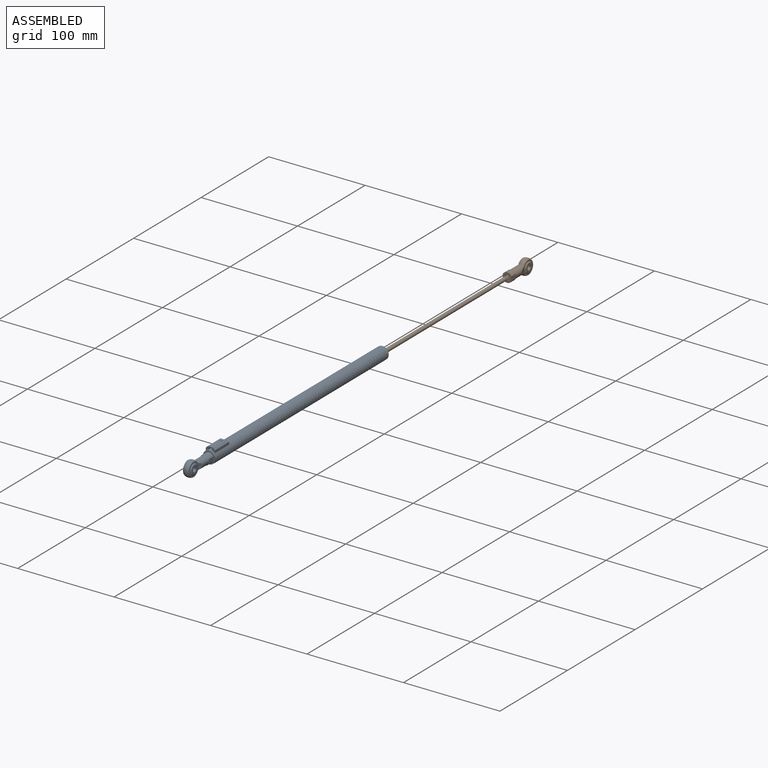
[diagram: assembled view]
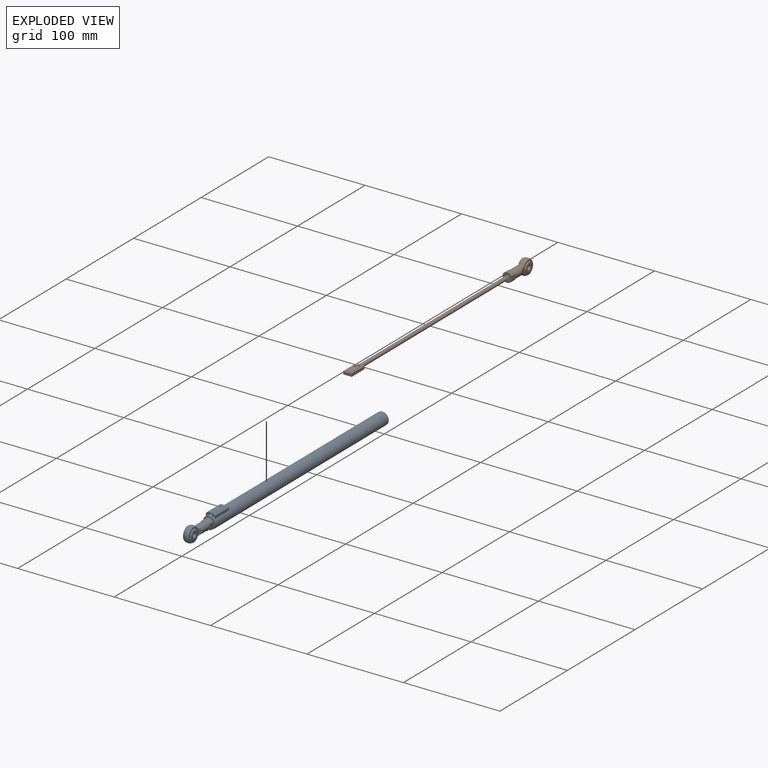
[diagram: exploded view]
GUIDED TOUR — MATED ASSEMBLY WITH SUBASSEMBLIES (Onshape document 5767b242e4b05752877bfc2a, AutoMate assembly 5767b242e4b05752877bfc2a_a9e642da309493be5c28545a_362c130009f189b425b69951_default)

This assembly has 11 component occurrences arranged in 2 top-level units: 0 individual components plus 2 subassemblies (S0, S1). The tour has two levels: first the top level, where each subassembly is treated as one rigid unit; then each subassembly is toured internally in its own section (nesting deeper than one subassembly level is flattened into its subassembly's section).

Components are labeled P0..P10 across the whole record; subassembly units are labeled S0..S1. A mate is a constraint between two units; its type names the relative motion it leaves free:
  FASTENED — locks the two components together rigidly (no relative motion),
  SLIDER — leaves translation along the listed axis free.
Axis/direction vectors are unit vectors and 'through' points are millimeter coordinates, both in the assembly's world frame.

TOP-LEVEL MATES (between units; each subassembly's internal mates are listed in its own section)
  1. SLIDER "Slider 1": S1 <-> S0, axis (0.000, -1.000, 0.000) through (0.10, 145.32, -0.22) mm

TOP-LEVEL ASSEMBLY ORDER
  1. S1 — the base component [order verified]
  2. S0 [order verified]
Order-tag legend:
  [order verified] — this step's position reverses a verified removal order: the component was checked to insert without passing through the ones already placed.

Of the 11 component occurrences, 7 carry the full construction recipe — the FeatureScript program that regenerates the part's solid from scratch; the rest are supplied as boundary geometry only. Each toured unit is shown spotlighted twice — assembled, then exploded with a leader line back to its socket (green = recipe-attached component, orange = geometry-only, blue = subassembly unit; the rest desaturated gray).
NOTE — document 2 of 2 of this assembly tour. The two overview renders and the header above are repeated from document 1; the component sections below continue where the previous document stopped.
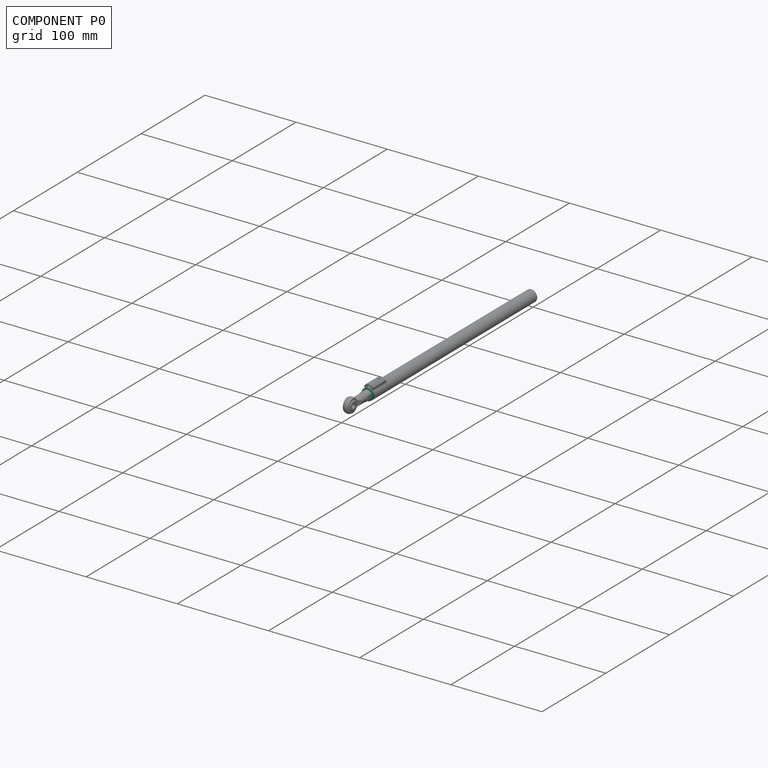
[diagram: component P0 — assembled]
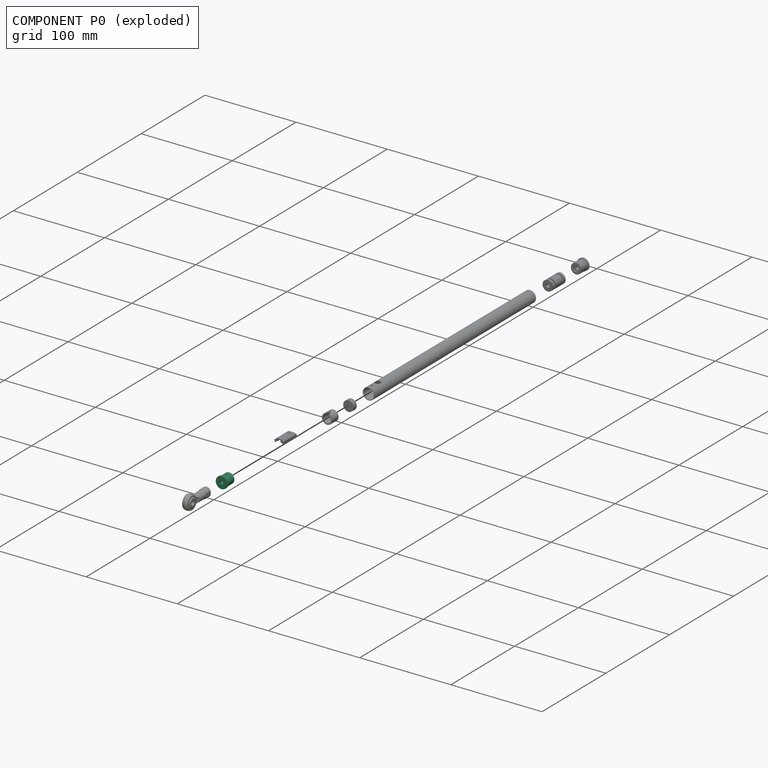
[diagram: component P0 — exploded]
COMPONENT P0 — recipe-attached (CADFS 00160749, mesh-verified: the recipe's output STEP matches this component's geometry to below the mesh-comparison resolution (tessellation chordal tolerance ~0.0326 mm)).
Held by: FASTENED mate "Fastened 3" to P3; FASTENED mate "Fastened 8" to P5; FASTENED mate "Fastened 6" to P4; FASTENED mate "Fastened 6" to P4; FASTENED mate "Fastened 3" to P3; FASTENED mate "Fastened 8" to P5.
Construction recipe (FeatureScript — the CAD program that rebuilds this solid; sketch coordinates are in the units given by the * unit suffixes, e.g. mm):

FeatureScript 1511;
import(path : "onshape/std/geometry.fs", version : "1511.0");
import(path : "onshape/std/common.fs", version : "1511.0");
const mm = millimeter;
const VERTEX = EntityType.VERTEX;
const EDGE = EntityType.EDGE;
const FACE = EntityType.FACE;
const BODY = EntityType.BODY;
function v(x, y){return vector(x, y);}
function OD(order){return orderDisambiguation(order);}
function OSD(set){return originalSetDisambiguation(set);}
function TD(topology){return topologyDisambiguation(topology);}
function TDD(query){return trueDependencyDisambiguation(query);}
function sQuery(a, b, c) {return sketchEntityQuery(a, b, c);}

annotation { "Feature Type Name" : "Feature", "Feature Type Description" : "" }
export const myFeature = defineFeature(function(context is Context, id is Id, definition is map)
    precondition{}
    {
        {
            assignVariable(context, id + "F0", {"name" : "InDiam_Bore", "anyValue" : 2});
        }
        {
            var Q0;
            Q0=qCreatedBy(makeId("Right.planeOp"),FACE);
            var sketch = newSketch(context, id + "F1", { "sketchPlane" : qUnion([Q0])});
            skLineSegment(sketch, "E0", {"start": v(11.47, 0) * mm, "end": v(0, 0) * mm, "construction": true});
            skLineSegment(sketch, "E1", {"start": v(8.9, 2.1) * mm, "end": v(0, 2.1) * mm});
            skLineSegment(sketch, "E2", {"start": v(8.9, 2.1) * mm, "end": v(8.9, 4.05) * mm});
            skLineSegment(sketch, "E3", {"start": v(12, 4.05) * mm, "end": v(8.9, 4.05) * mm});
            skLineSegment(sketch, "E4", {"start": v(12, 4.05) * mm, "end": v(12, 5.7) * mm});
            skLineSegment(sketch, "E5", {"start": v(2, 5.7) * mm, "end": v(12, 5.7) * mm});
            skLineSegment(sketch, "E6", {"start": v(2, 5.7) * mm, "end": v(2, 6.4) * mm});
            skLineSegment(sketch, "E7", {"start": v(0, 6.4) * mm, "end": v(2, 6.4) * mm});
            skLineSegment(sketch, "E8", {"start": v(0, 6.4) * mm, "end": v(0, 2.1) * mm});
            skSolve(sketch);
        }
        {
            var Q0;
            Q0=makeQuery(id+"F1.imprint","IMPRINT",FACE,{"disambiguationData":[TD([[makeQuery(id+"F1.imprint","IMPRINT",EDGE,{"derivedFrom":sQuery(id+"F1.wireOp",EDGE,"E1")}),-1.0]])]});
            var Q1;
            Q1=sQuery(id+"F1.wireOp",EDGE,"E0");
            revolve(context, id + "F2", {"entities" : qUnion([Q0]), "axis" : qUnion([Q1]), "revolveType" : RevolveType.FULL});
        }
        {
            var Q0;
            Q0=qCreatedBy(makeId("Top.planeOp"),FACE);
            var sketch = newSketch(context, id + "F3", { "sketchPlane" : qUnion([Q0])});
            skCircle(sketch, "E9", {"center": v(0, 7) * mm, "radius": 1 * mm});
            skLineSegment(sketch, "E10.0", {"start": v(-5.7, 12) * mm, "end": v(5.7, 12) * mm});
            skSolve(sketch);
        }
        {
            var Q0;
            Q0=sQuery(id+"F3.wireOp",VERTEX,"E9.center");
            var Q1;
            Q1=makeQuery(id+"F2.opRevolve","SWEPT_BODY",BODY,{"disambiguationData":[OSD([sQuery(id+"F1.wireOp",EDGE,"E1"),sQuery(id+"F1.wireOp",EDGE,"E2"),sQuery(id+"F1.wireOp",EDGE,"E3"),sQuery(id+"F1.wireOp",EDGE,"E4"),sQuery(id+"F1.wireOp",EDGE,"E5"),sQuery(id+"F1.wireOp",EDGE,"E6"),sQuery(id+"F1.wireOp",EDGE,"E7"),sQuery(id+"F1.wireOp",EDGE,"E8")])]});
            hole(context, id + "F4", {"style" : HoleStyle.SIMPLE, "endStyle" : HoleEndStyle.THROUGH, "holeDiameter" : (getVariable(context, 'InDiam_Bore')) * mm, "startFromSketch" : true, "locations" : qUnion([Q0]), "scope" : qUnion([Q1]), "isTappedThrough" : true});
        }
    });
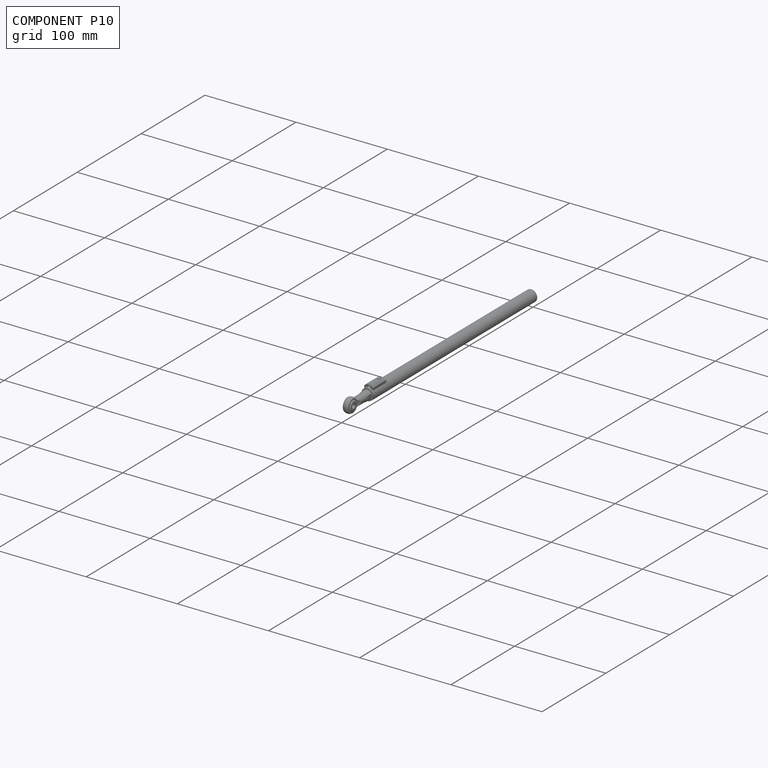
[diagram: component P10 — assembled]
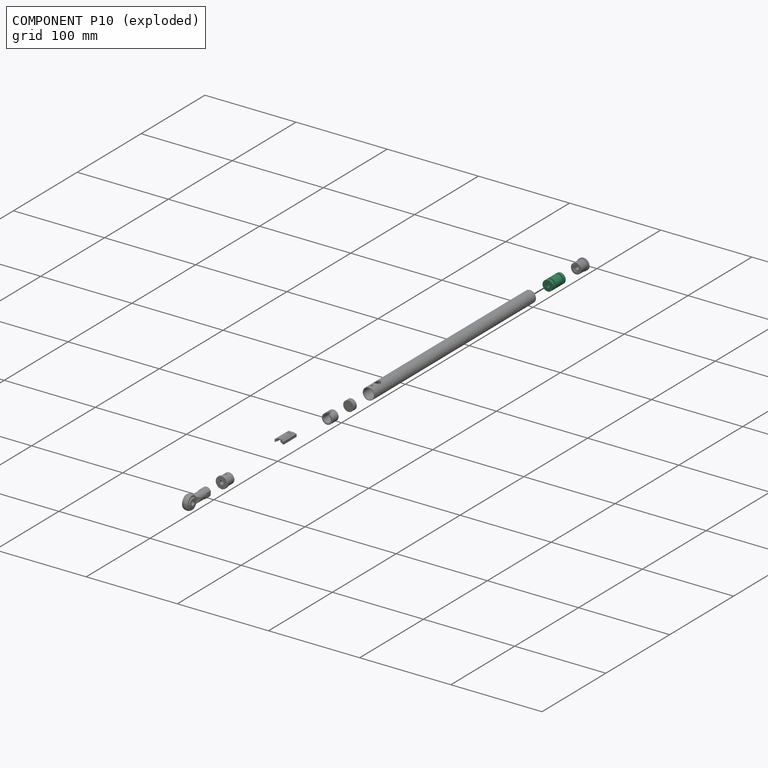
[diagram: component P10 — exploded]
COMPONENT P10 — recipe-attached (CADFS 00157078, mesh-verified: the recipe's output STEP matches this component's geometry to below the mesh-comparison resolution (tessellation chordal tolerance ~0.0385 mm)).
Held by: FASTENED mate "Fastened 4" to P5; FASTENED mate "Fastened 4" to P5.
Construction recipe (FeatureScript — the CAD program that rebuilds this solid; sketch coordinates are in the units given by the * unit suffixes, e.g. mm):

FeatureScript 1511;
import(path : "onshape/std/geometry.fs", version : "1511.0");
import(path : "onshape/std/common.fs", version : "1511.0");
const mm = millimeter;
const VERTEX = EntityType.VERTEX;
const EDGE = EntityType.EDGE;
const FACE = EntityType.FACE;
const BODY = EntityType.BODY;
function v(x, y){return vector(x, y);}
function OD(order){return orderDisambiguation(order);}
function OSD(set){return originalSetDisambiguation(set);}
function TD(topology){return topologyDisambiguation(topology);}
function TDD(query){return trueDependencyDisambiguation(query);}
function sQuery(a, b, c) {return sketchEntityQuery(a, b, c);}

annotation { "Feature Type Name" : "Feature", "Feature Type Description" : "" }
export const myFeature = defineFeature(function(context is Context, id is Id, definition is map)
    precondition{}
    {
        {
            var Q0;
            Q0=qCreatedBy(makeId("Right.planeOp"),FACE);
            var sketch = newSketch(context, id + "F0", { "sketchPlane" : qUnion([Q0])});
            skLineSegment(sketch, "E0", {"start": v(11.47, 0) * mm, "end": v(0, 0) * mm, "construction": true});
            skLineSegment(sketch, "E1", {"start": v(18.6, 2.05) * mm, "end": v(0, 2.05) * mm});
            skLineSegment(sketch, "E2", {"start": v(18.6, 2.05) * mm, "end": v(18.6, 3.45) * mm});
            skLineSegment(sketch, "E3", {"start": v(20, 3.45) * mm, "end": v(18.6, 3.45) * mm});
            skLineSegment(sketch, "E4", {"start": v(20, 3.45) * mm, "end": v(20, 5.7) * mm});
            skLineSegment(sketch, "E5", {"start": v(17, 5.7) * mm, "end": v(20, 5.7) * mm});
            skLineSegment(sketch, "E6", {"start": v(17, 5.7) * mm, "end": v(17, 4.2) * mm});
            skLineSegment(sketch, "E7", {"start": v(15.5, 4.2) * mm, "end": v(17, 4.2) * mm});
            skLineSegment(sketch, "E8", {"start": v(3, 4.2) * mm, "end": v(3, 5.7) * mm});
            skLineSegment(sketch, "E9", {"start": v(0, 5.7) * mm, "end": v(3, 5.7) * mm});
            skLineSegment(sketch, "E10", {"start": v(0, 5.7) * mm, "end": v(0, 2.05) * mm});
            skLineSegment(sketch, "E11", {"start": v(4.5, 4.2) * mm, "end": v(4.5, 5.7) * mm});
            skLineSegment(sketch, "E12", {"start": v(4.5, 5.7) * mm, "end": v(15.5, 5.7) * mm});
            skLineSegment(sketch, "E13", {"start": v(15.5, 5.7) * mm, "end": v(15.5, 4.2) * mm});
            skLineSegment(sketch, "E14.trimOffspring", {"start": v(4.5, 4.2) * mm, "end": v(3, 4.2) * mm});
            skSolve(sketch);
        }
        {
            var Q0;
            Q0=makeQuery(id+"F0.imprint","IMPRINT",FACE,{"disambiguationData":[TD([[makeQuery(id+"F0.imprint","IMPRINT",EDGE,{"derivedFrom":sQuery(id+"F0.wireOp",EDGE,"E1")}),-1.0]])]});
            var Q1;
            Q1=sQuery(id+"F0.wireOp",EDGE,"E0");
            revolve(context, id + "F1", {"entities" : qUnion([Q0]), "axis" : qUnion([Q1]), "revolveType" : RevolveType.FULL});
        }
    });
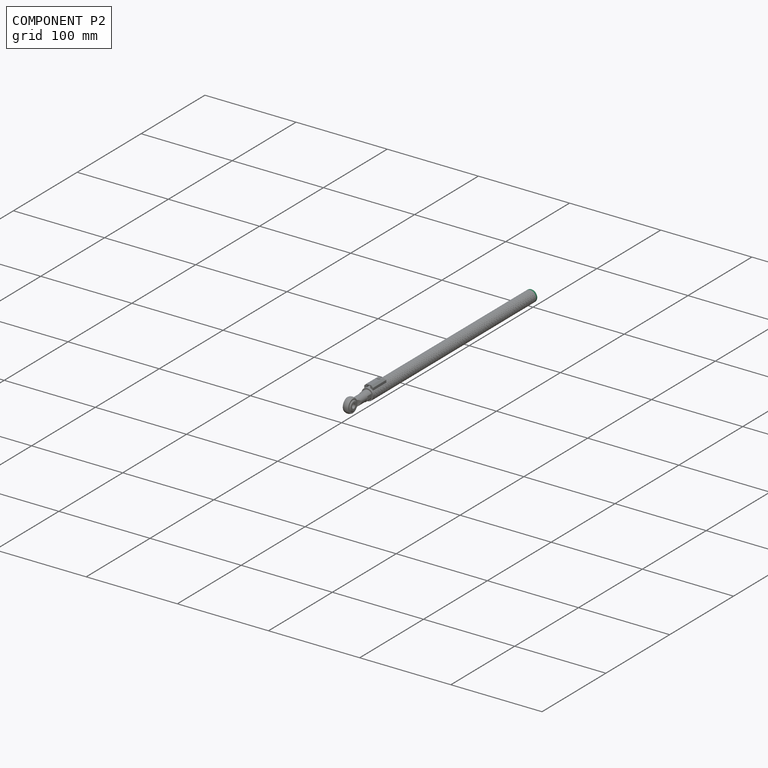
[diagram: component P2 — assembled]
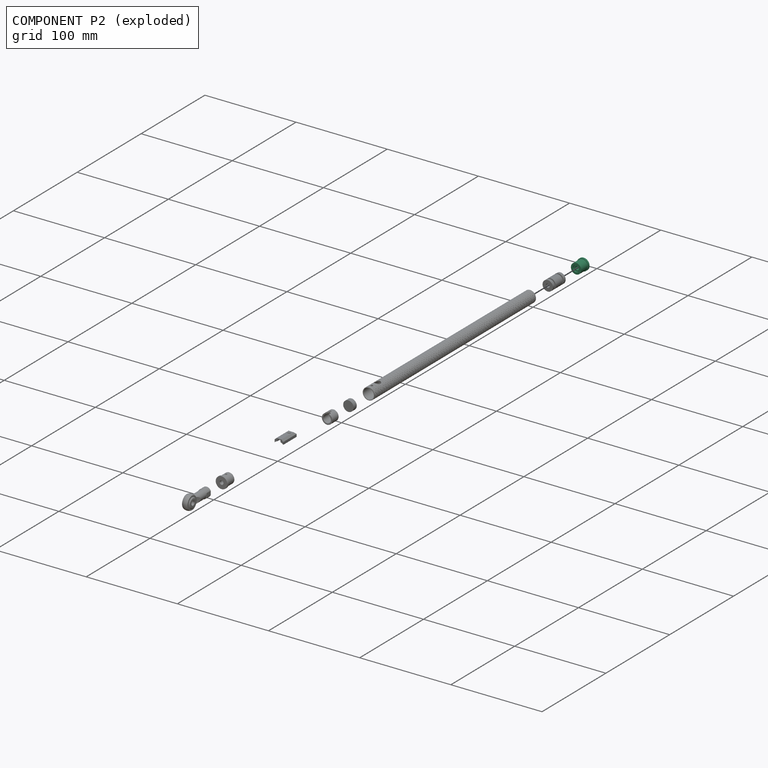
[diagram: component P2 — exploded]
COMPONENT P2 — recipe-attached (CADFS 00160707, mesh-verified: the recipe's output STEP matches this component's geometry to below the mesh-comparison resolution (tessellation chordal tolerance ~0.0326 mm)).
Held by: FASTENED mate "Fastened 5" to P5; FASTENED mate "Fastened 5" to P5.
Construction recipe (FeatureScript — the CAD program that rebuilds this solid; sketch coordinates are in the units given by the * unit suffixes, e.g. mm):

FeatureScript 1540;
import(path : "onshape/std/geometry.fs", version : "1540.0");
import(path : "onshape/std/common.fs", version : "1540.0");
const mm = millimeter;
const VERTEX = EntityType.VERTEX;
const EDGE = EntityType.EDGE;
const FACE = EntityType.FACE;
const BODY = EntityType.BODY;
function v(x, y){return vector(x, y);}
function OD(order){return orderDisambiguation(order);}
function OSD(set){return originalSetDisambiguation(set);}
function TD(topology){return topologyDisambiguation(topology);}
function TDD(query){return trueDependencyDisambiguation(query);}
function sQuery(a, b, c) {return sketchEntityQuery(a, b, c);}

annotation { "Feature Type Name" : "Feature", "Feature Type Description" : "" }
export const myFeature = defineFeature(function(context is Context, id is Id, definition is map)
    precondition{}
    {
        {
            var Q0;
            Q0=qCreatedBy(makeId("Right.planeOp"),FACE);
            var sketch = newSketch(context, id + "F0", { "sketchPlane" : qUnion([Q0])});
            skLineSegment(sketch, "E0", {"start": v(11.47, 0) * mm, "end": v(0, 0) * mm, "construction": true});
            skLineSegment(sketch, "E1", {"start": v(10.6, 2.1) * mm, "end": v(0, 2.1) * mm});
            skLineSegment(sketch, "E2", {"start": v(10.6, 2.1) * mm, "end": v(10.6, 3.45) * mm});
            skLineSegment(sketch, "E3", {"start": v(12, 3.45) * mm, "end": v(10.6, 3.45) * mm});
            skLineSegment(sketch, "E4", {"start": v(12, 3.45) * mm, "end": v(12, 5.7) * mm});
            skLineSegment(sketch, "E5", {"start": v(2, 5.7) * mm, "end": v(12, 5.7) * mm});
            skLineSegment(sketch, "E6", {"start": v(2, 5.7) * mm, "end": v(2, 6.4) * mm});
            skLineSegment(sketch, "E7", {"start": v(0, 6.4) * mm, "end": v(2, 6.4) * mm});
            skLineSegment(sketch, "E8", {"start": v(0, 6.4) * mm, "end": v(0, 2.1) * mm});
            skSolve(sketch);
        }
        {
            var Q0;
            Q0=makeQuery(id+"F0.imprint","IMPRINT",FACE,{"disambiguationData":[TD([[makeQuery(id+"F0.imprint","IMPRINT",EDGE,{"derivedFrom":sQuery(id+"F0.wireOp",EDGE,"E1")}),-1.0]])]});
            var Q1;
            Q1=sQuery(id+"F0.wireOp",EDGE,"E0");
            revolve(context, id + "F1", {"entities" : qUnion([Q0]), "axis" : qUnion([Q1]), "revolveType" : RevolveType.FULL});
        }
    });
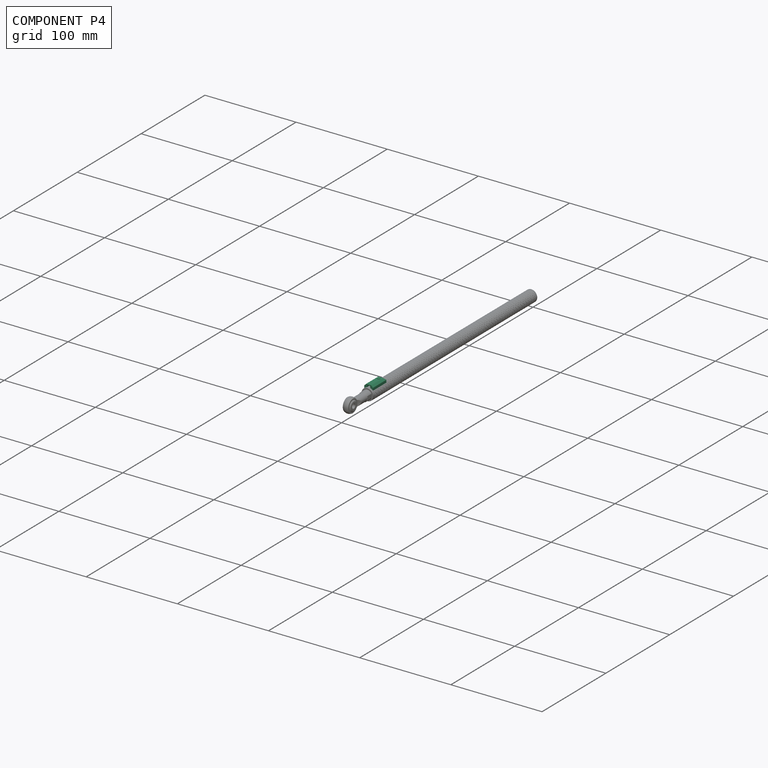
[diagram: component P4 — assembled]
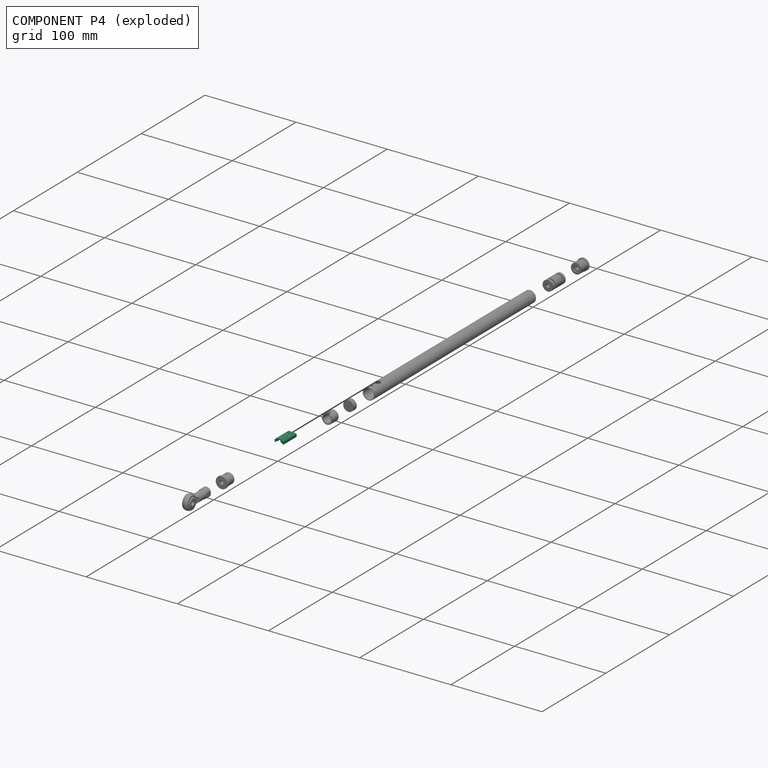
[diagram: component P4 — exploded]
COMPONENT P4 — recipe-attached (CADFS 00166230, mesh-verified: the recipe's output STEP matches this component's geometry to below the mesh-comparison resolution (tessellation chordal tolerance ~0.0353 mm)).
Held by: FASTENED mate "Fastened 6" to P0; FASTENED mate "Fastened 6" to P0.
Construction recipe (FeatureScript — the CAD program that rebuilds this solid; sketch coordinates are in the units given by the * unit suffixes, e.g. mm):

FeatureScript 1540;
import(path : "onshape/std/geometry.fs", version : "1540.0");
import(path : "onshape/std/common.fs", version : "1540.0");
const mm = millimeter;
const VERTEX = EntityType.VERTEX;
const EDGE = EntityType.EDGE;
const FACE = EntityType.FACE;
const BODY = EntityType.BODY;
function v(x, y){return vector(x, y);}
function OD(order){return orderDisambiguation(order);}
function OSD(set){return originalSetDisambiguation(set);}
function TD(topology){return topologyDisambiguation(topology);}
function TDD(query){return trueDependencyDisambiguation(query);}
function sQuery(a, b, c) {return sketchEntityQuery(a, b, c);}

annotation { "Feature Type Name" : "Feature", "Feature Type Description" : "" }
export const myFeature = defineFeature(function(context is Context, id is Id, definition is map)
    precondition{}
    {
        {
            assignVariable(context, id + "F0", {"name" : "Main_Length", "anyValue" : 21});
        }
        {
            assignVariable(context, id + "F1", {"name" : "Bore_Diam", "anyValue" : 3.5});
        }
        {
            assignVariable(context, id + "F2", {"name" : "Bore_Offset", "anyValue" : 0.5});
        }
        {
            assignVariable(context, id + "F3", {"name" : "Chamfer", "anyValue" : 2});
        }
        {
            assignVariable(context, id + "F4", {"name" : "Hole_Diam", "anyValue" : 2.5});
        }
        {
            var Q0;
            Q0=qCreatedBy(makeId("Front.planeOp"),FACE);
            var sketch = newSketch(context, id + "F5", { "sketchPlane" : qUnion([Q0])});
            skArc(sketch, "E0", {"start": v(4.75, 4.44) * mm, "mid": v(0, 6.5) * mm, "end": v(-4.75, 4.44) * mm});
            skLineSegment(sketch, "E1.bottom", {"start": v(4.75, 9.24) * mm, "end": v(-4.75, 9.24) * mm});
            skLineSegment(sketch, "E1.left", {"start": v(4.75, 9.24) * mm, "end": v(4.75, 4.44) * mm});
            skLineSegment(sketch, "E1.right", {"start": v(-4.75, 9.24) * mm, "end": v(-4.75, 4.44) * mm});
            skPoint(sketch, "E1.middle", {"position": v(0, 6.84) * mm});
            skArc(sketch, "E2", {"start": v(1.75, 6.99) * mm, "mid": v(0, 8.74) * mm, "end": v(-1.75, 6.99) * mm});
            skLineSegment(sketch, "E3", {"start": v(-1.75, 6.99) * mm, "end": v(-1.75, 6.26) * mm});
            skLineSegment(sketch, "E4", {"start": v(1.75, 6.99) * mm, "end": v(1.75, 6.26) * mm});
            skSolve(sketch);
        }
        {
            var Q0;
            Q0=makeQuery(id+"F5.imprint","IMPRINT",FACE,{"disambiguationData":[TD([[makeQuery(id+"F5.imprint","IMPRINT",EDGE,{"derivedFrom":sQuery(id+"F5.wireOp",EDGE,"E0")}),-1.0]])]});
            var Q1;
            {var subQ0=sQuery(id+"F5.wireOp",EDGE,"E2");var subQ1=sQuery(id+"F5.wireOp",EDGE,"E0");var subQ2=makeQuery(id+"F5.imprint","INTERSECT",VERTEX,{"disambiguationData":[OD(0.0)],"derivedFrom":[subQ1,subQ0]});Q1=makeQuery(id+"F5.imprint","IMPRINT",FACE,{"disambiguationData":[TD([[makeQuery(id+"F5.imprint","IMPRINT",EDGE,{"disambiguationData":[TD([[subQ2,-1.0]])],"derivedFrom":subQ1}),-1.0]])]});}
            var Q2;
            Q2=makeQuery(id+"F5.imprint","IMPRINT",FACE,{"disambiguationData":[TD([[makeQuery(id+"F5.imprint","IMPRINT",EDGE,{"derivedFrom":sQuery(id+"F5.wireOp",EDGE,"E2")}),1.0]])]});
            extrude(context, id + "F6", {"entities" : qUnion([Q0, Q1, Q2]), "oppositeDirection" : true, "depth" : (getVariable(context, 'Main_Length')) * mm});
        }
        {
            var Q0;
            Q0=makeQuery(id+"F6.opExtrude","SWEPT_EDGE",EDGE,{"disambiguationData":[OSD([sQuery(id+"F5.wireOp",EDGE,"E1.bottom"),sQuery(id+"F5.wireOp",EDGE,"E1.right")])]});
            var Q1;
            Q1=makeQuery(id+"F6.opExtrude","SWEPT_EDGE",EDGE,{"disambiguationData":[OSD([sQuery(id+"F5.wireOp",EDGE,"E1.bottom"),sQuery(id+"F5.wireOp",EDGE,"E1.left")])]});
            chamfer(context, id + "F7", {"entities" : qUnion([Q0, Q1]), "width" : (getVariable(context, 'Chamfer')) * mm, "tangentPropagation" : true});
        }
        {
            var Q0;
            Q0=makeQuery(id+"F6.opExtrude","CAP_EDGE",EDGE,{"disambiguationData":[OSD([sQuery(id+"F5.wireOp",EDGE,"E1.bottom")])],"isStart":false});
            chamfer(context, id + "F8", {"entities" : qUnion([Q0]), "width" : (getVariable(context, 'Chamfer')) * mm, "tangentPropagation" : true});
        }
        {
            var Q0;
            Q0=makeQuery(id+"F6.opExtrude","SWEPT_FACE",FACE,{"disambiguationData":[OSD([sQuery(id+"F5.wireOp",EDGE,"E1.bottom")])]});
            cPlane(context, id + "F9", {"entities" : qUnion([Q0]), "cplaneType" : CPlaneType.OFFSET, "offset" : (getVariable(context, 'Bore_Offset') + getVariable(context, 'Bore_Diam') / 2) * mm, "oppositeDirection" : true, "width" : 150 * mm, "height" : 150 * mm});
        }
        {
            var Q0;
            Q0=qCreatedBy(id+"F9.planeOp",FACE);
            var sketch = newSketch(context, id + "F10", { "sketchPlane" : qUnion([Q0])});
            skLineSegment(sketch, "E5", {"start": v(-1.75, 0) * mm, "end": v(-1.75, 11.75) * mm});
            skLineSegment(sketch, "E6", {"start": v(1.75, 0) * mm, "end": v(1.75, 11.75) * mm});
            skArc(sketch, "E7", {"start": v(1.75, 11.75) * mm, "mid": v(0, 13.5) * mm, "end": v(-1.75, 11.75) * mm});
            skLineSegment(sketch, "E8", {"start": v(-1.75, 0) * mm, "end": v(1.75, 0) * mm});
            skLineSegment(sketch, "E9", {"start": v(0, 0) * mm, "end": v(0, 13.5) * mm});
            skSolve(sketch);
        }
        {
            var Q0;
            {var subQ0=sQuery(id+"F10.wireOp",EDGE,"E5");Q0=makeQuery(id+"F10.imprint","IMPRINT",FACE,{"disambiguationData":[TD([[makeQuery(id+"F10.imprint","IMPRINT",EDGE,{"derivedFrom":subQ0}),-1.0]])]});}
            var Q1;
            Q1=sQuery(id+"F10.wireOp",EDGE,"E9");
            revolve(context, id + "F11", {"operationType" : NewBodyOperationType.REMOVE, "entities" : qUnion([Q0]), "axis" : qUnion([Q1]), "revolveType" : RevolveType.FULL, "oppositeDirection" : true});
        }
        {
            var Q0;
            {var subQ0=sQuery(id+"F10.wireOp",EDGE,"E6");Q0=makeQuery(id+"F10.imprint","IMPRINT",FACE,{"disambiguationData":[TD([[makeQuery(id+"F10.imprint","IMPRINT",EDGE,{"derivedFrom":subQ0}),1.0]])]});}
            var Q1;
            {var subQ0=sQuery(id+"F10.wireOp",EDGE,"E5");Q1=makeQuery(id+"F10.imprint","IMPRINT",FACE,{"disambiguationData":[TD([[makeQuery(id+"F10.imprint","IMPRINT",EDGE,{"derivedFrom":subQ0}),-1.0]])]});}
            extrude(context, id + "F12", {"entities" : qUnion([Q0, Q1]), "operationType" : NewBodyOperationType.REMOVE, "endBound" : BoundingType.THROUGH_ALL, "oppositeDirection" : true, "depth" : 25 * mm});
        }
        {
            var Q0;
            Q0=makeQuery(id+"F6.opExtrude","SWEPT_FACE",FACE,{"disambiguationData":[OSD([sQuery(id+"F5.wireOp",EDGE,"E1.bottom")])]});
            var sketch = newSketch(context, id + "F13", { "sketchPlane" : qUnion([Q0])});
            skCircle(sketch, "E10", {"center": v(0, 16) * mm, "radius": 1.25 * mm});
            skSolve(sketch);
        }
        {
            var Q0;
            Q0=sQuery(id+"F13.wireOp",VERTEX,"E10.center");
            var Q1;
            Q1=makeQuery(id+"F6.opExtrude","SWEPT_BODY",BODY,{"disambiguationData":[OSD([sQuery(id+"F5.wireOp",EDGE,"E0"),sQuery(id+"F5.wireOp",EDGE,"E1.bottom"),sQuery(id+"F5.wireOp",EDGE,"E1.left"),sQuery(id+"F5.wireOp",EDGE,"E1.right")])]});
            hole(context, id + "F14", {"style" : HoleStyle.C_SINK, "endStyle" : HoleEndStyle.THROUGH, "holeDiameter" : (getVariable(context, 'Hole_Diam')) * mm, "cSinkDiameter" : 4 * mm, "cSinkAngle" : 90 * degree, "locations" : qUnion([Q0]), "scope" : qUnion([Q1]), "isTappedThrough" : true});
        }
    });
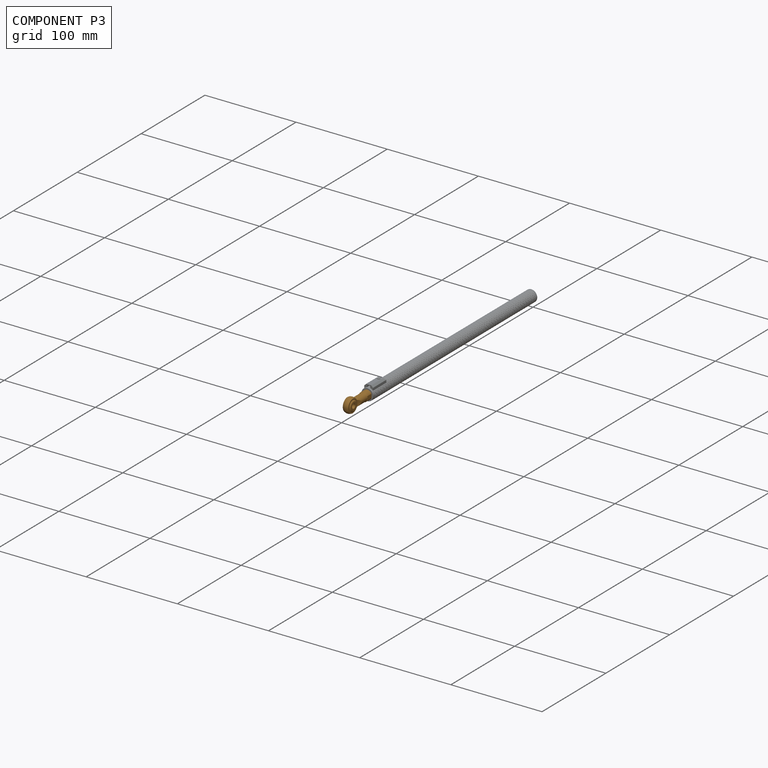
[diagram: component P3 — assembled]
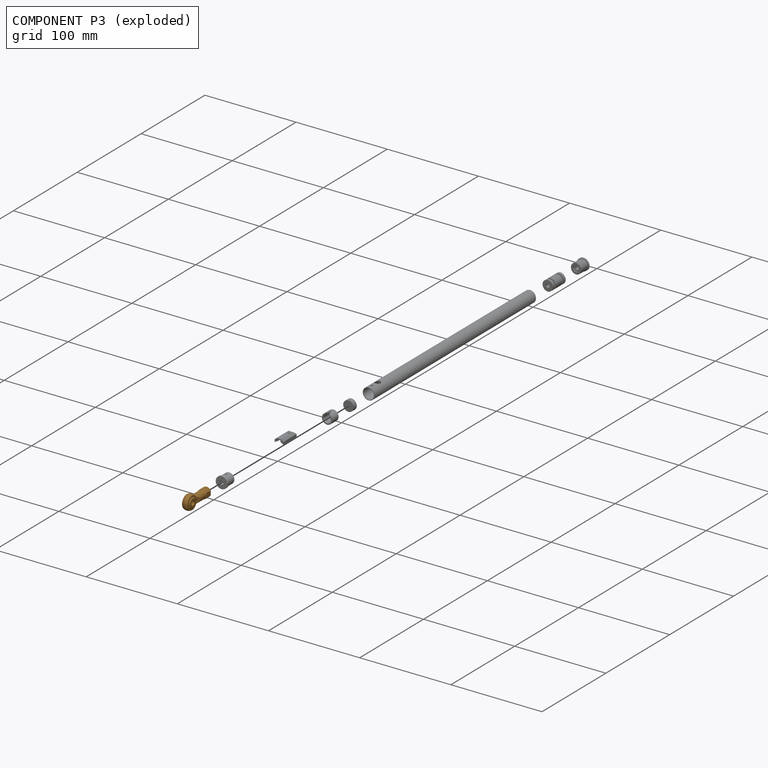
[diagram: component P3 — exploded]
COMPONENT P3 — geometry summary (no construction recipe available for this part):
  bounding box: 35.0 x 14.4 x 9.0 mm
  B-rep topology: 1 solid, 24 faces, 92 edges
  volume: 2172 mm^3 (48% of its bounding box)
  symmetry: 2-fold rotationally symmetric about the y axis; mirror-symmetric across its x mid-plane, z mid-plane
Held by: FASTENED mate "Fastened 3" to P0; FASTENED mate "Fastened 3" to P0.
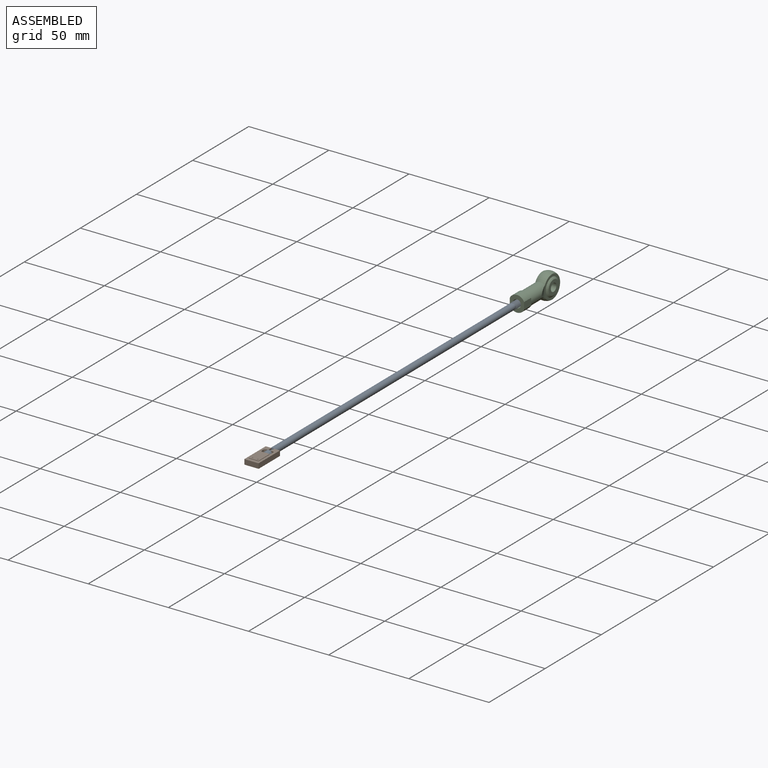
[diagram: subassembly S1 — assembled view]
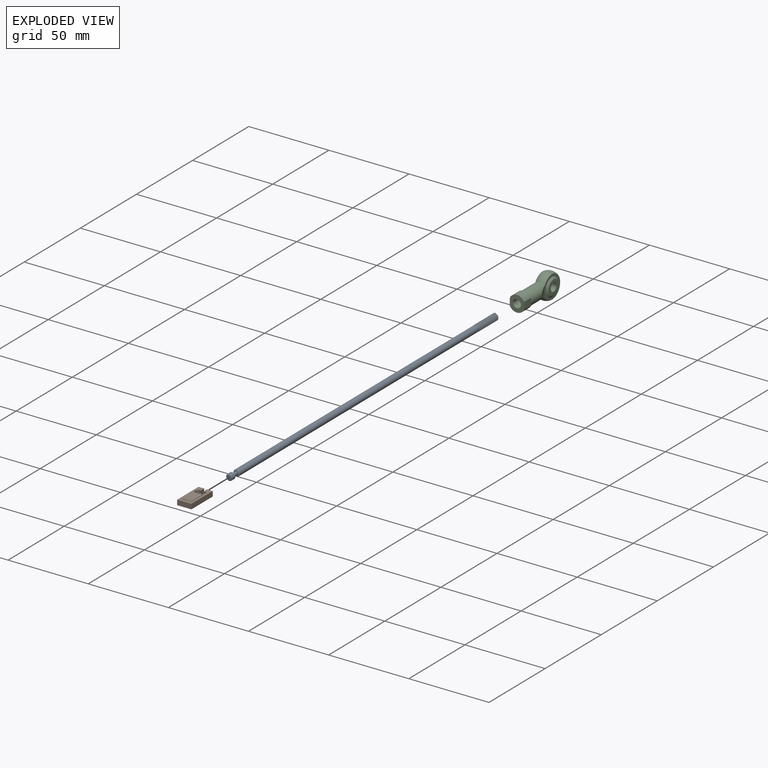
[diagram: subassembly S1 — exploded view]
SUBASSEMBLY S1 TOUR — 3 components, shown here in isolation at its own camera.

INTERNAL MATES
  1. FASTENED "Fastened 2": P9 <-> P1, direction (0.000, -1.000, 0.000) through (0.10, 395.82, -0.22) mm
  2. FASTENED "Fastened 1": P7 <-> P1, direction (0.000, 1.000, 0.000) through (0.10, 164.32, -0.22) mm
  3. FASTENED "Fastened 2": P9 <-> P1, direction (0.000, -1.000, 0.000) through (0.10, 395.82, -0.22) mm
  4. FASTENED "Fastened 1": P7 <-> P1, direction (0.000, 1.000, 0.000) through (0.10, 164.32, -0.22) mm

ASSEMBLY ORDER (within the subassembly)
  1. P9 — the base component [order verified]
  2. P1 [order verified]
  3. P7 [order verified]
Order-tag legend:
  [order verified] — this step's position reverses a verified removal order: the component was checked to insert without passing through the ones already placed.
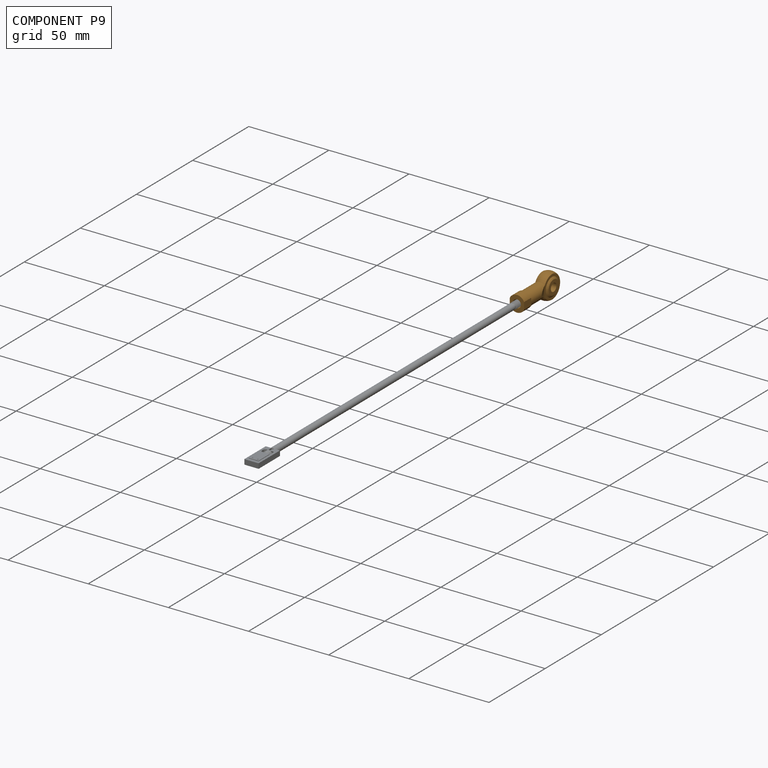
[diagram: component P9 — assembled]
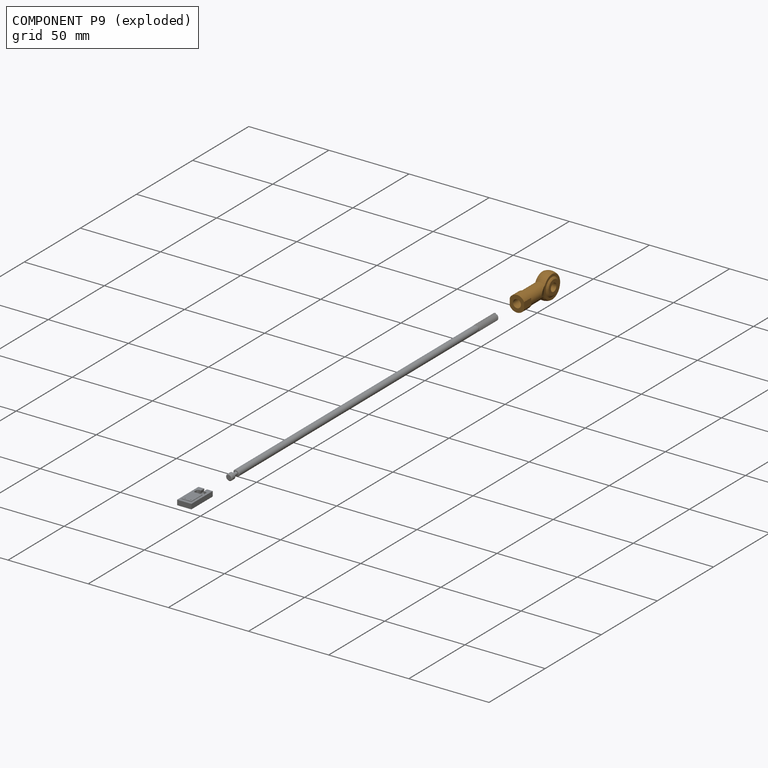
[diagram: component P9 — exploded]
COMPONENT P9 — geometry summary (no construction recipe available for this part):
  bounding box: 35.0 x 14.4 x 9.0 mm
  B-rep topology: 1 solid, 24 faces, 92 edges
  volume: 2172 mm^3 (48% of its bounding box)
  symmetry: 2-fold rotationally symmetric about the y axis; mirror-symmetric across its x mid-plane, z mid-plane
Held by: FASTENED mate "Fastened 2" to P1; FASTENED mate "Fastened 2" to P1.
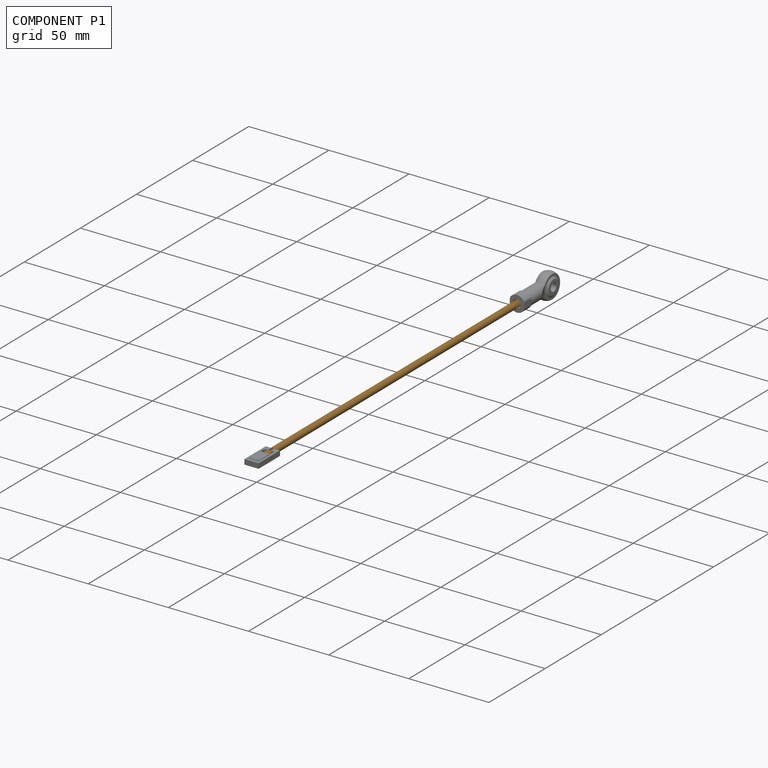
[diagram: component P1 — assembled]
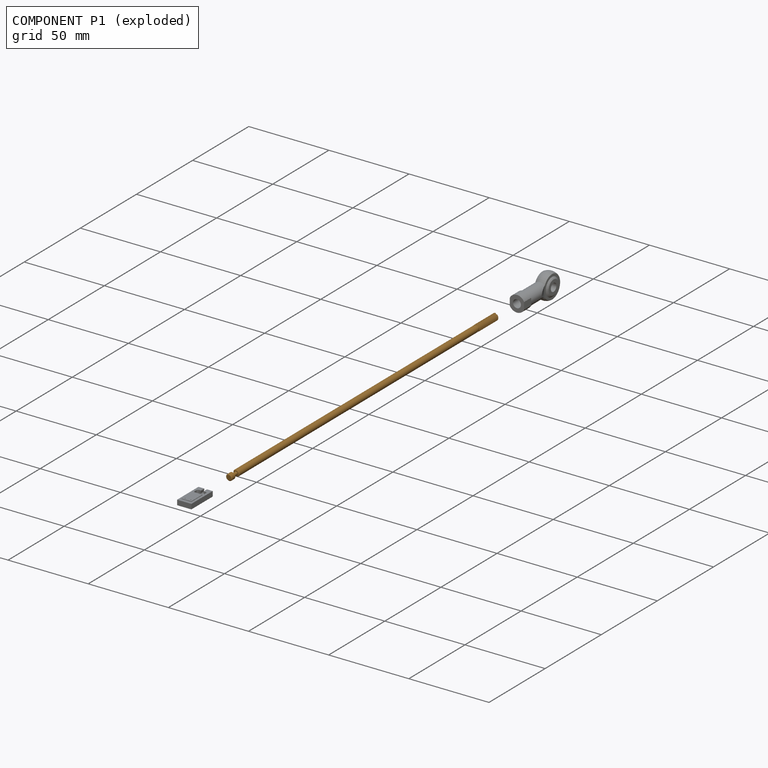
[diagram: component P1 — exploded]
COMPONENT P1 — geometry summary (no construction recipe available for this part):
  bounding box: 238.0 x 4.8 x 4.2 mm
  B-rep topology: 1 solid, 23 faces, 90 edges
  volume: 2916 mm^3 (61% of its bounding box)
  symmetry: 2-fold rotationally symmetric about the x axis; revolution-symmetric about the y axis through its bounding-box center; 2-fold rotationally symmetric about the z axis; mirror-symmetric across its x mid-plane, y mid-plane, z mid-plane
Held by: FASTENED mate "Fastened 2" to P9; FASTENED mate "Fastened 1" to P7; FASTENED mate "Fastened 2" to P9; FASTENED mate "Fastened 1" to P7.
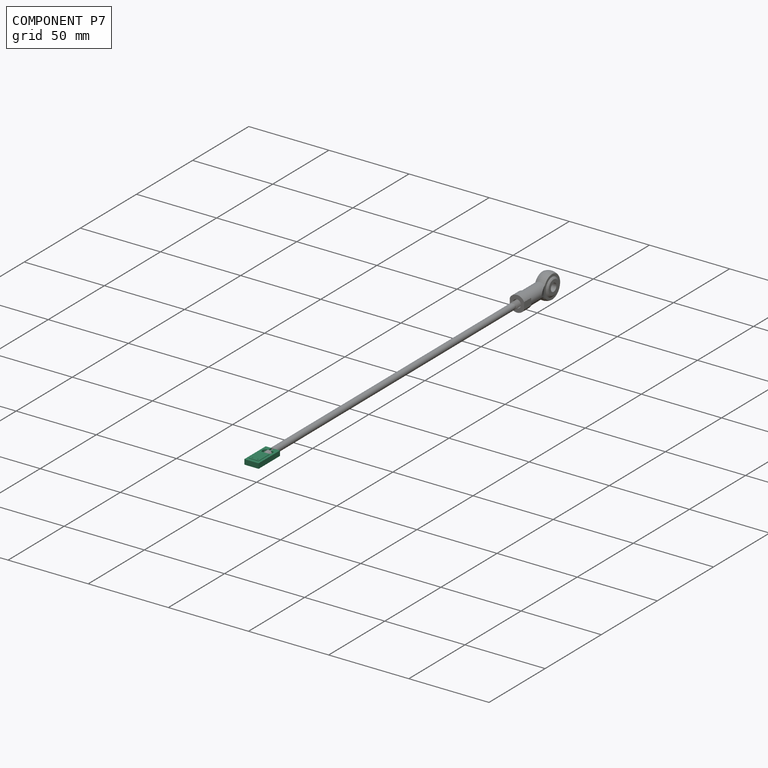
[diagram: component P7 — assembled]
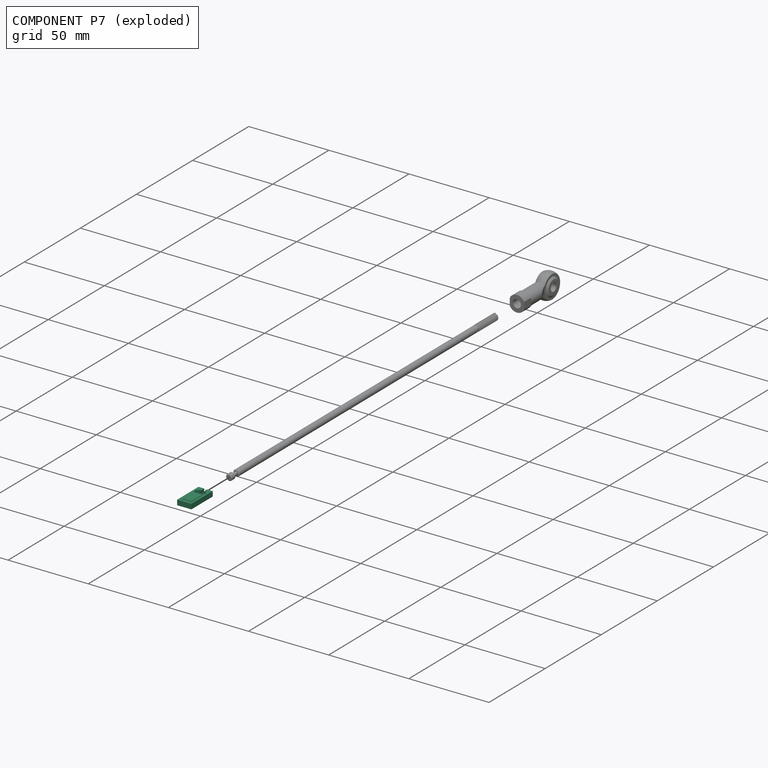
[diagram: component P7 — exploded]
COMPONENT P7 — recipe-attached (CADFS 00164716, mesh-verified: the recipe's output STEP matches this component's geometry to below the mesh-comparison resolution (tessellation chordal tolerance ~0.032 mm)).
Held by: FASTENED mate "Fastened 1" to P1; FASTENED mate "Fastened 1" to P1.
Construction recipe (FeatureScript — the CAD program that rebuilds this solid; sketch coordinates are in the units given by the * unit suffixes, e.g. mm):

FeatureScript 1511;
import(path : "onshape/std/geometry.fs", version : "1511.0");
import(path : "onshape/std/common.fs", version : "1511.0");
const mm = millimeter;
const VERTEX = EntityType.VERTEX;
const EDGE = EntityType.EDGE;
const FACE = EntityType.FACE;
const BODY = EntityType.BODY;
function v(x, y){return vector(x, y);}
function OD(order){return orderDisambiguation(order);}
function OSD(set){return originalSetDisambiguation(set);}
function TD(topology){return topologyDisambiguation(topology);}
function TDD(query){return trueDependencyDisambiguation(query);}
function sQuery(a, b, c) {return sketchEntityQuery(a, b, c);}

annotation { "Feature Type Name" : "Feature", "Feature Type Description" : "" }
export const myFeature = defineFeature(function(context is Context, id is Id, definition is map)
    precondition{}
    {
        {
            assignVariable(context, id + "F0", {"name" : "Main_Width", "anyValue" : 8.9});
        }
        {
            assignVariable(context, id + "F1", {"name" : "Thickness1", "anyValue" : 3.1});
        }
        {
            assignVariable(context, id + "F2", {"name" : "Thickness2", "anyValue" : 3.7});
        }
        {
            var Q0;
            Q0=qCreatedBy(makeId("Right.planeOp"),FACE);
            var sketch = newSketch(context, id + "F3", { "sketchPlane" : qUnion([Q0])});
            skLineSegment(sketch, "E0", {"start": v(0, 0) * mm, "end": v(0, 1.55) * mm});
            skLineSegment(sketch, "E1", {"start": v(0, 1.55) * mm, "end": v(19, 1.55) * mm});
            skLineSegment(sketch, "E2", {"start": v(19, 1.55) * mm, "end": v(19, 0) * mm});
            skLineSegment(sketch, "E3", {"start": v(0, 0) * mm, "end": v(19, 0) * mm, "construction": true});
            skLineSegment(sketch, "E4.MirrorCS", {"start": v(0, -1.55) * mm, "end": v(19, -1.55) * mm});
            skLineSegment(sketch, "E5.MirrorCS", {"start": v(0, 0) * mm, "end": v(0, -1.55) * mm});
            skLineSegment(sketch, "E6.MirrorCS", {"start": v(19, -1.55) * mm, "end": v(19, 0) * mm});
            skSolve(sketch);
        }
        {
            var Q0;
            Q0=makeQuery(id+"F3.imprint","IMPRINT",FACE,{"disambiguationData":[TD([[makeQuery(id+"F3.imprint","IMPRINT",EDGE,{"derivedFrom":sQuery(id+"F3.wireOp",EDGE,"E0")}),-1.0]])]});
            extrude(context, id + "F4", {"entities" : qUnion([Q0]), "depth" : (getVariable(context, 'Main_Width')) * mm});
        }
        {
            var Q0;
            Q0=makeQuery(id+"F4.opExtrude","SWEPT_FACE",FACE,{"disambiguationData":[OSD([sQuery(id+"F3.wireOp",EDGE,"E1")])]});
            cPlane(context, id + "F5", {"entities" : qUnion([Q0]), "cplaneType" : CPlaneType.OFFSET, "offset" : ((getVariable(context, 'Thickness2') - getVariable(context, 'Thickness1')) / 2) * mm, "width" : 150 * mm, "height" : 150 * mm});
        }
        {
            var Q0;
            Q0=qCreatedBy(id+"F5.planeOp",FACE);
            var sketch = newSketch(context, id + "F6", { "sketchPlane" : qUnion([Q0])});
            skLineSegment(sketch, "E7.bottom", {"start": v(1.45, 17) * mm, "end": v(7.45, 17) * mm});
            skLineSegment(sketch, "E7.top", {"start": v(1.45, 7) * mm, "end": v(7.45, 7) * mm});
            skLineSegment(sketch, "E7.left", {"start": v(1.45, 17) * mm, "end": v(1.45, 7) * mm});
            skLineSegment(sketch, "E7.right", {"start": v(7.45, 17) * mm, "end": v(7.45, 7) * mm});
            skPoint(sketch, "E7.middle", {"position": v(4.45, 12) * mm});
            skLineSegment(sketch, "E8.0", {"start": v(8.9, 19) * mm, "end": v(0, 19) * mm});
            skLineSegment(sketch, "E9.0", {"start": v(0, 0) * mm, "end": v(0, 19) * mm});
            skPoint(sketch, "E10", {"position": v(4.45, 19) * mm});
            skPoint(sketch, "E11", {"position": v(0, 9.5) * mm});
            skSolve(sketch);
        }
        {
            var Q0;
            Q0=makeQuery(id+"F6.imprint","IMPRINT",FACE,{"disambiguationData":[TD([[makeQuery(id+"F6.imprint","IMPRINT",EDGE,{"derivedFrom":sQuery(id+"F6.wireOp",EDGE,"E7.bottom")}),-1.0]])]});
            extrude(context, id + "F7", {"entities" : qUnion([Q0]), "operationType" : NewBodyOperationType.ADD, "oppositeDirection" : true, "depth" : (getVariable(context, 'Thickness2')) * mm});
        }
        {
            var Q0;
            Q0=qCreatedBy(id+"F5.planeOp",FACE);
            var sketch = newSketch(context, id + "F8", { "sketchPlane" : qUnion([Q0])});
            skLineSegment(sketch, "E12.0", {"start": v(8.9, 0) * mm, "end": v(0, 0) * mm});
            skLineSegment(sketch, "E13", {"start": v(4.45, 15.64) * mm, "end": v(4.45, 0) * mm, "construction": true});
            skPoint(sketch, "E13.endSnap0", {"position": v(4.45, 0) * mm});
            skLineSegment(sketch, "E14.bottom", {"start": v(2.4, 3) * mm, "end": v(6.5, 3) * mm});
            skLineSegment(sketch, "E14.top", {"start": v(2.4, 6.5) * mm, "end": v(6.5, 6.5) * mm});
            skLineSegment(sketch, "E14.left", {"start": v(2.4, 3) * mm, "end": v(2.4, 6.5) * mm, "construction": true});
            skLineSegment(sketch, "E14.right", {"start": v(6.5, 3) * mm, "end": v(6.5, 6.5) * mm, "construction": true});
            skPoint(sketch, "E14.middle", {"position": v(4.45, 4.75) * mm});
            skArc(sketch, "E15", {"start": v(1.4, 4) * mm, "mid": v(1.7, 3.3) * mm, "end": v(2.4, 3) * mm});
            skArc(sketch, "E16", {"start": v(2.4, 6.5) * mm, "mid": v(1.7, 6.2) * mm, "end": v(1.4, 5.5) * mm});
            skLineSegment(sketch, "E17", {"start": v(1.4, 4) * mm, "end": v(1.4, 5.5) * mm});
            skArc(sketch, "E18.MirrorCS", {"start": v(6.5, 6.5) * mm, "mid": v(7.2, 6.2) * mm, "end": v(7.5, 5.5) * mm});
            skLineSegment(sketch, "E19.MirrorCS", {"start": v(7.5, 4) * mm, "end": v(7.5, 5.5) * mm});
            skArc(sketch, "E20.MirrorCS", {"start": v(7.5, 4) * mm, "mid": v(7.2, 3.3) * mm, "end": v(6.5, 3) * mm});
            skCircle(sketch, "E21", {"center": v(2.75, 15.64) * mm, "radius": 0.3 * mm});
            skCircle(sketch, "E22", {"center": v(6.15, 15.64) * mm, "radius": 0.3 * mm});
            skSolve(sketch);
        }
        {
            var Q0;
            Q0=makeQuery(id+"F8.imprint","IMPRINT",FACE,{"disambiguationData":[TD([[makeQuery(id+"F8.imprint","IMPRINT",EDGE,{"derivedFrom":sQuery(id+"F8.wireOp",EDGE,"E14.bottom")}),1.0]])]});
            var Q1;
            Q1=makeQuery(id+"F8.imprint","IMPRINT",FACE,{"disambiguationData":[TD([[makeQuery(id+"F8.imprint","IMPRINT",EDGE,{"derivedFrom":sQuery(id+"F8.wireOp",EDGE,"E21")}),1.0]])]});
            var Q2;
            Q2=makeQuery(id+"F8.imprint","IMPRINT",FACE,{"disambiguationData":[TD([[makeQuery(id+"F8.imprint","IMPRINT",EDGE,{"derivedFrom":sQuery(id+"F8.wireOp",EDGE,"E22")}),1.0]])]});
            extrude(context, id + "F9", {"entities" : qUnion([Q0, Q1, Q2]), "operationType" : NewBodyOperationType.REMOVE, "endBound" : BoundingType.THROUGH_ALL, "oppositeDirection" : true, "depth" : 25 * mm});
        }
        {
            var Q0;
            Q0=makeQuery(id+"F4.opExtrude","SWEPT_FACE",FACE,{"disambiguationData":[OSD([sQuery(id+"F3.wireOp",EDGE,"E0"),sQuery(id+"F3.wireOp",EDGE,"E5.MirrorCS")])]});
            var sketch = newSketch(context, id + "F10", { "sketchPlane" : qUnion([Q0])});
            skLineSegment(sketch, "E23.0.0", {"start": v(0, 1.55) * mm, "end": v(0, -1.55) * mm});
            skLineSegment(sketch, "E23.0.1", {"start": v(0, -1.55) * mm, "end": v(8.9, -1.55) * mm});
            skLineSegment(sketch, "E23.0.2", {"start": v(8.9, -1.55) * mm, "end": v(8.9, 1.55) * mm});
            skLineSegment(sketch, "E23.0.3", {"start": v(8.9, 1.55) * mm, "end": v(0, 1.55) * mm});
            skArc(sketch, "E24", {"start": v(3.6, 0.7) * mm, "mid": v(4.45, -1.1) * mm, "end": v(5.3, 0.7) * mm});
            skLineSegment(sketch, "E25", {"start": v(4.45, 1.55) * mm, "end": v(4.45, -1.55) * mm, "construction": true});
            skLineSegment(sketch, "E26", {"start": v(3.6, 0.7) * mm, "end": v(3.6, 1.55) * mm});
            skLineSegment(sketch, "E27", {"start": v(5.3, 0.7) * mm, "end": v(5.3, 1.55) * mm});
            skSolve(sketch);
        }
        {
            var Q0;
            Q0=makeQuery(id+"F10.imprint","IMPRINT",FACE,{"disambiguationData":[TD([[makeQuery(id+"F10.imprint","IMPRINT",EDGE,{"derivedFrom":sQuery(id+"F10.wireOp",EDGE,"E24")}),1.0]])]});
            extrude(context, id + "F11", {"entities" : qUnion([Q0]), "operationType" : NewBodyOperationType.REMOVE, "endBound" : BoundingType.UP_TO_NEXT, "oppositeDirection" : true, "depth" : 25 * mm});
        }
    });
PROVENANCE & LICENSES
Assembly (occurrences, transforms, mates, per-part STEP geometry): AutoMate dataset, Zenodo record 7776208, CC0.
Construction recipes: CADFS (HuggingFace VladPyatov/CADFS, CC-BY-4.0, layered over the ABC dataset), FeatureScript reconstruction programs keyed by ABC model id.
Join: ABC meta listings map ABC model id -> Onshape documentId; within a shared document, parts are matched by geometric signature (bounding-box dims + volume at 0.1% relative tolerance, exact B-rep face/solid counts).
Verification: 7 of this assembly's 11 components carry a recipe attachment, and every attachment is mesh-verified: the CADFS STEP and the AutoMate member STEP were compared as meshes in their shared local frame (symmetric sampled-point-to-mesh distance); worst across the 7 attachments: below the mesh-comparison resolution (tessellation chordal tolerance ~0.38 mm) on a 254 mm part.
Renders: orthographic iso camera (az 35 / el 25); the floor grid conveys scale (grid pitch printed in each image; no ruler). In the exploded view each component is displaced by its stored offset vector: the offsets alone carry the explosion direction (mate normal/axis signs are not orientation cues and do not encode it), and separation distances are assigned per mate-chain, not proportionally to assembly-order depth.
